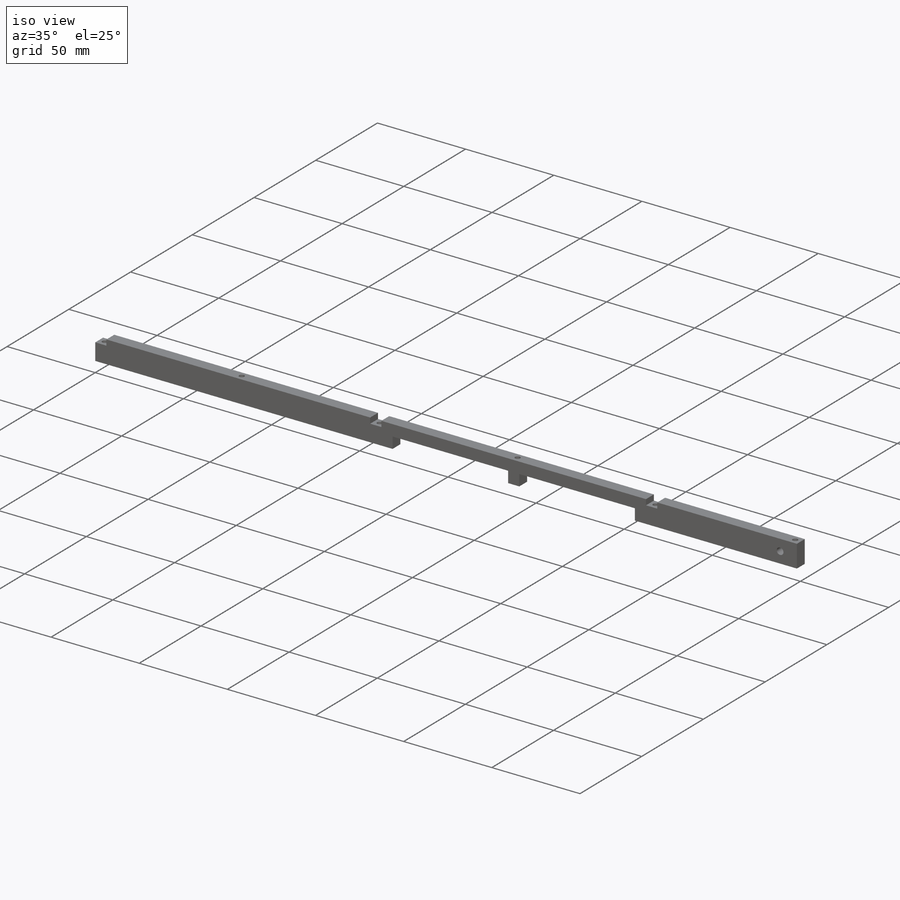
[diagram: iso view]
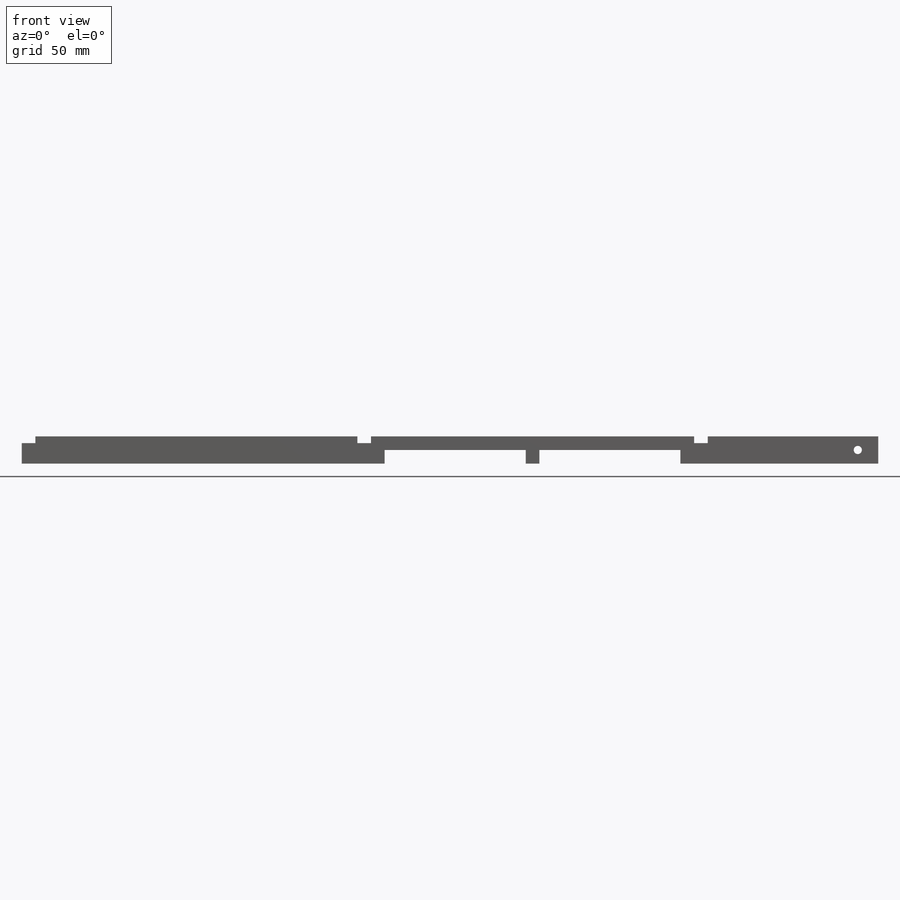
[diagram: front view]
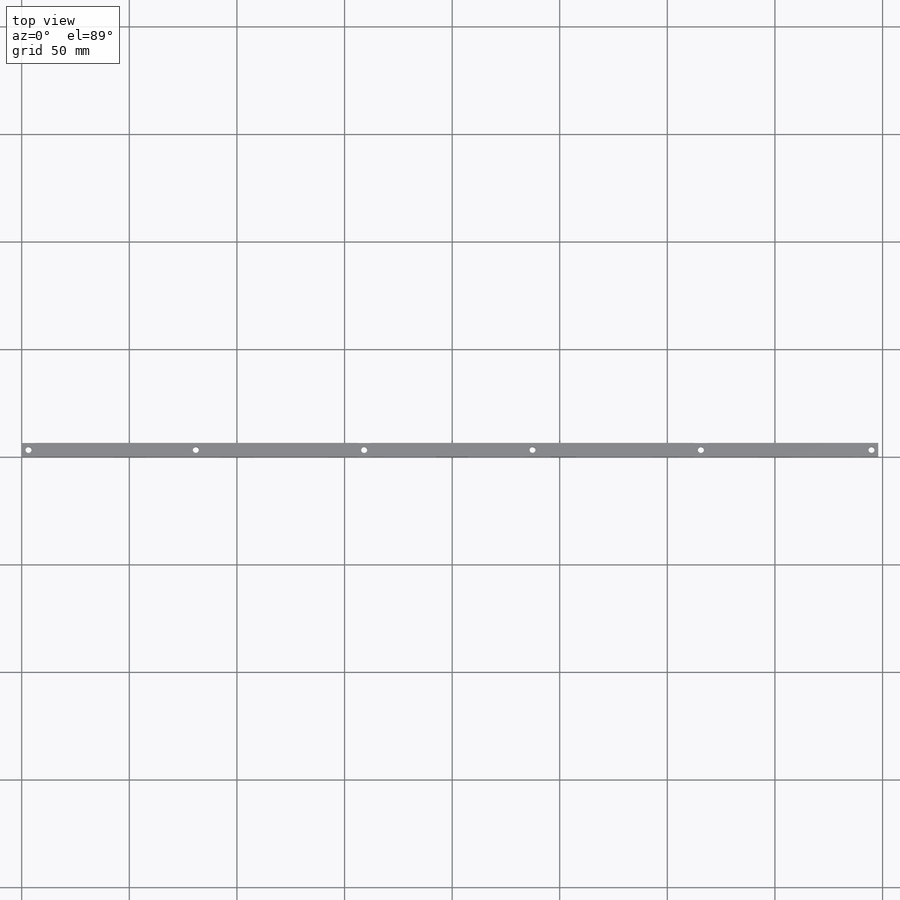
[diagram: top view]
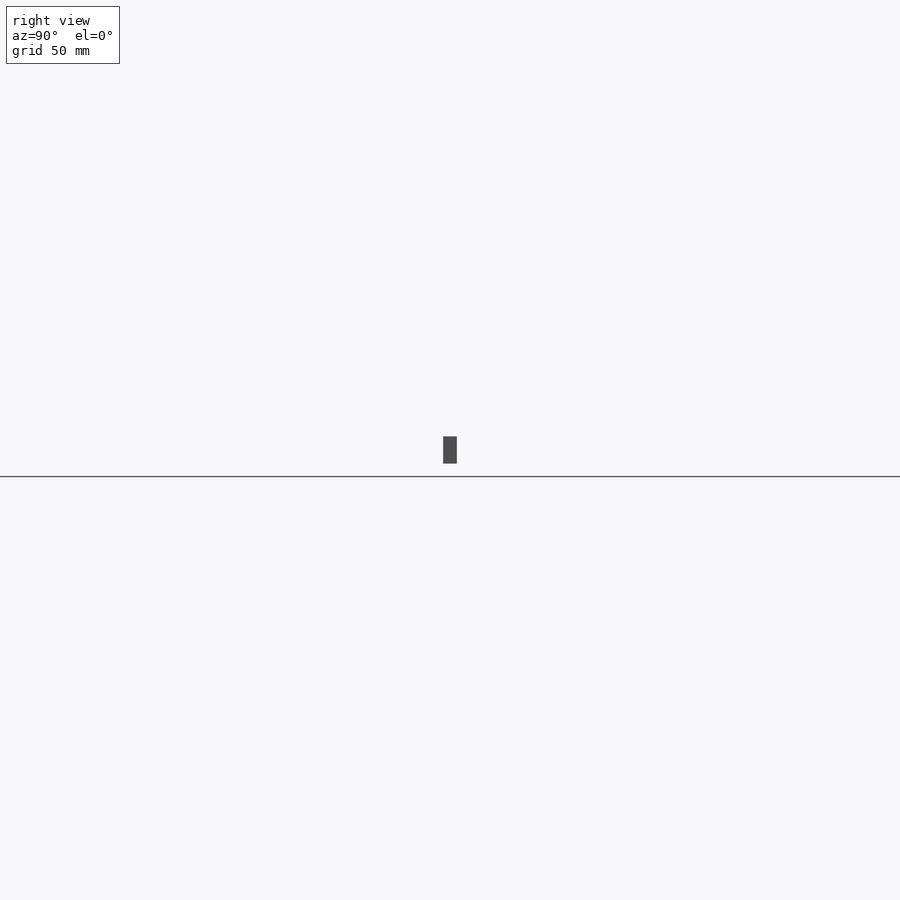
[diagram: right view]
SOLIDWORKS PART (.sldprt)
format: sldprt  version: not decoded by parser v0  size: 307,712 bytes
history: native  units: mm
features: sketch x7, hole x2, cut_extrude x2, material x1, extrude x1 (+13 scaffold rows collapsed)
feature tree (26):
  scaffold x13  (default folders/planes/origin — collapsed)
  material  "Material <not specified>"
  sketch  "Sketch1"  dims[D1=6.35mm D2=12.7mm]
  extrude  "Boss-Extrude1"  Depth=398.018mm
  hole  "#34 (0.111) Diameter Hole1"  Diameter=2.8194mm Depth=12.7mm
  sketch  "Sketch4"  dims[D1=3.175mm D2=77.724mm D3=78.232mm D4=78.232mm D5=78.232mm D6=79.248mm]
  sketch  "Sketch5"  dims[hole-wizard template sketch: 59 standard entries collapsed; hole parameters kept: c18.Thru Hole Dia.=2.8194mm c18.Thru Hole Depth=12.7mm]
  sketch  "Sketch6"  dims[D1=6.35mm D2=6.4008mm D3=6.35mm D4=6.4008mm D5=6.35mm D6=6.4008mm D7=6.35mm D8=12.7mm D9=6.35mm D10=6.35mm]
  cut_extrude  "Cut-Extrude1"  [1 undecoded]
  hole  "Tap Drill for #10-24 Tap1"  Diameter=3.7973mm Depth=6.35mm
  sketch  "Sketch8"  dims[D1=9.525mm]
  sketch  "Sketch7"  dims[hole-wizard template sketch: 60 standard entries collapsed; hole parameters kept: c18.Thru Hole Depth=6.35mm]
  sketch  "Sketch9"  dims[D1=6.35mm D2=6.35mm D3=6.35mm D4=6.35mm D5=6.35mm D6=8.255mm D7=1.5875mm]
  cut_extrude  "Cut-Extrude3"  [1 undecoded]
decode coverage: 10 of 12 modeling features carry decoded parameters
note: ~ marks probable driven/reference dimensions
note: 2 parameter values undecoded
note: suppression state not decoded; provenance and decode notes live in map.json
